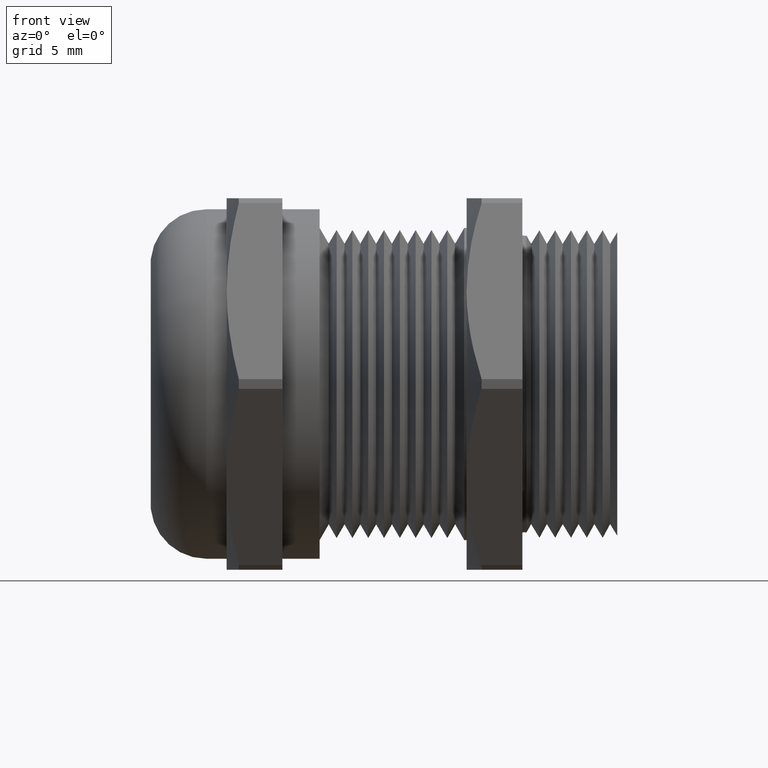
[diagram: clean part render]
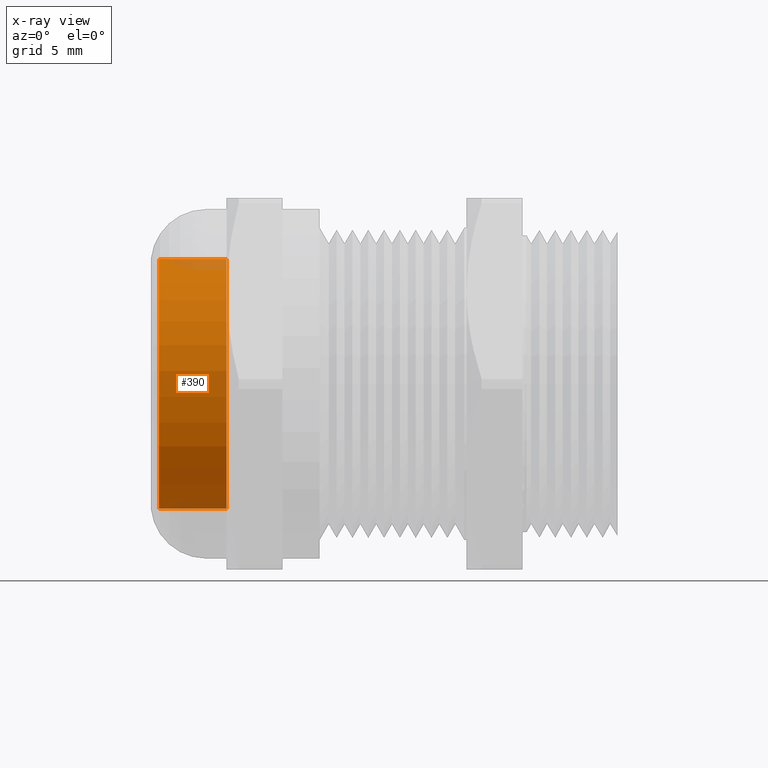
[diagram: x-ray — body ghosted, one internal face saturated and labeled with its STEP entity id]
A machine part, front view, then the same camera in x-ray: the body is ghosted and one INTERNAL B-rep face — a face not visible from any outside direction — is saturated and labeled: STEP entity #390.
In plain terms, the highlighted cylindrical surface (partial cylindrical patch) has radius 8.0264 mm, axis along (1, 0, 0).
Its self-contained STEP definition (entity closure, byte-faithful):
#378 = VERTEX_POINT ( 'NONE', #1246 ) ;
#380 = EDGE_CURVE ( 'NONE', #437, #378, #1244, .T. ) ;
#385 = EDGE_CURVE ( 'NONE', #419, #378, #992, .T. ) ;
#390 = ADVANCED_FACE ( 'NONE', ( #1291 ), #1290, .T. ) ;
#391 = EDGE_LOOP ( 'NONE', ( #474, #475, #477, #478 ) ) ;
#418 = EDGE_CURVE ( 'NONE', #436, #419, #1321, .T. ) ;
#419 = VERTEX_POINT ( 'NONE', #1317 ) ;
#436 = VERTEX_POINT ( 'NONE', #1348 ) ;
#437 = VERTEX_POINT ( 'NONE', #1347 ) ;
#474 = ORIENTED_EDGE ( 'NONE', *, *, #418, .F. ) ;
#475 = ORIENTED_EDGE ( 'NONE', *, *, #476, .T. ) ;
#476 = EDGE_CURVE ( 'NONE', #436, #437, #1425, .T. ) ;
#477 = ORIENTED_EDGE ( 'NONE', *, *, #380, .T. ) ;
#478 = ORIENTED_EDGE ( 'NONE', *, *, #385, .F. ) ;
#992 = CIRCLE ( 'NONE', #1300, 0.3160000000000000600 ) ;
#1241 = DIRECTION ( 'NONE',  ( 1.000000000000000000, 0.0000000000000000000, 0.0000000000000000000 ) ) ;
#1242 = VECTOR ( 'NONE', #1241, 39.37007874015748100 ) ;
#1243 = CARTESIAN_POINT ( 'NONE',  ( 0.0000000000000000000, 0.0000000000000000000, -0.3160000000000000600 ) ) ;
#1244 = LINE ( 'NONE', #1243, #1242 ) ;
#1246 = CARTESIAN_POINT ( 'NONE',  ( -0.3979999999999999600, 0.0000000000000000000, -0.3160000000000000600 ) ) ;
#1285 = DIRECTION ( 'NONE',  ( 0.0000000000000000000, 0.0000000000000000000, -1.000000000000000000 ) ) ;
#1286 = DIRECTION ( 'NONE',  ( 1.000000000000000000, 0.0000000000000000000, 0.0000000000000000000 ) ) ;
#1287 = CARTESIAN_POINT ( 'NONE',  ( 0.0000000000000000000, 0.0000000000000000000, 0.0000000000000000000 ) ) ;
#1288 = AXIS2_PLACEMENT_3D ( 'NONE', #1287, #1286, #1285 ) ;
#1290 = CYLINDRICAL_SURFACE ( 'NONE', #1288, 0.3160000000000000600 ) ;
#1291 = FACE_OUTER_BOUND ( 'NONE', #391, .T. ) ;
#1297 = DIRECTION ( 'NONE',  ( 0.0000000000000000000, 0.0000000000000000000, -1.000000000000000000 ) ) ;
#1298 = DIRECTION ( 'NONE',  ( 1.000000000000000000, 0.0000000000000000000, 0.0000000000000000000 ) ) ;
#1299 = CARTESIAN_POINT ( 'NONE',  ( -0.3979999999999999600, 0.0000000000000000000, 0.0000000000000000000 ) ) ;
#1300 = AXIS2_PLACEMENT_3D ( 'NONE', #1299, #1298, #1297 ) ;
#1317 = CARTESIAN_POINT ( 'NONE',  ( -0.3979999999999999600, 3.869883885305636800E-017, 0.3160000000000000600 ) ) ;
#1318 = DIRECTION ( 'NONE',  ( 1.000000000000000000, 0.0000000000000000000, 0.0000000000000000000 ) ) ;
#1319 = VECTOR ( 'NONE', #1318, 39.37007874015748100 ) ;
#1320 = CARTESIAN_POINT ( 'NONE',  ( 0.0000000000000000000, 3.869883885305636800E-017, 0.3160000000000000600 ) ) ;
#1321 = LINE ( 'NONE', #1320, #1319 ) ;
#1347 = CARTESIAN_POINT ( 'NONE',  ( -0.5699999999999999500, 0.0000000000000000000, -0.3160000000000000600 ) ) ;
#1348 = CARTESIAN_POINT ( 'NONE',  ( -0.5699999999999999500, 3.869883885305636800E-017, 0.3160000000000000600 ) ) ;
#1421 = DIRECTION ( 'NONE',  ( 0.0000000000000000000, 0.0000000000000000000, -1.000000000000000000 ) ) ;
#1422 = DIRECTION ( 'NONE',  ( 1.000000000000000000, 0.0000000000000000000, 0.0000000000000000000 ) ) ;
#1423 = CARTESIAN_POINT ( 'NONE',  ( -0.5699999999999999500, 0.0000000000000000000, 0.0000000000000000000 ) ) ;
#1424 = AXIS2_PLACEMENT_3D ( 'NONE', #1423, #1422, #1421 ) ;
#1425 = CIRCLE ( 'NONE', #1424, 0.3160000000000000600 ) ;